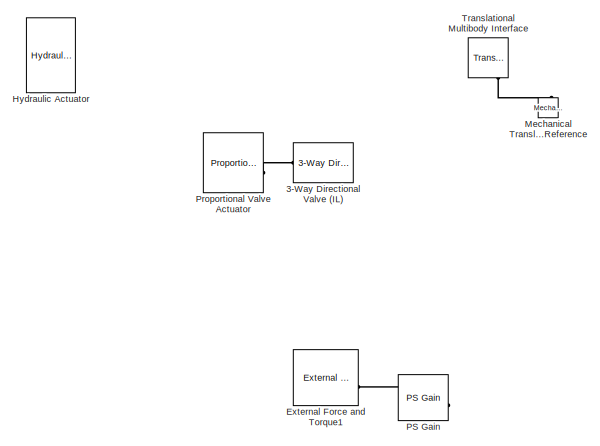
[diagram: root canvas - part 1/2, middle right region]
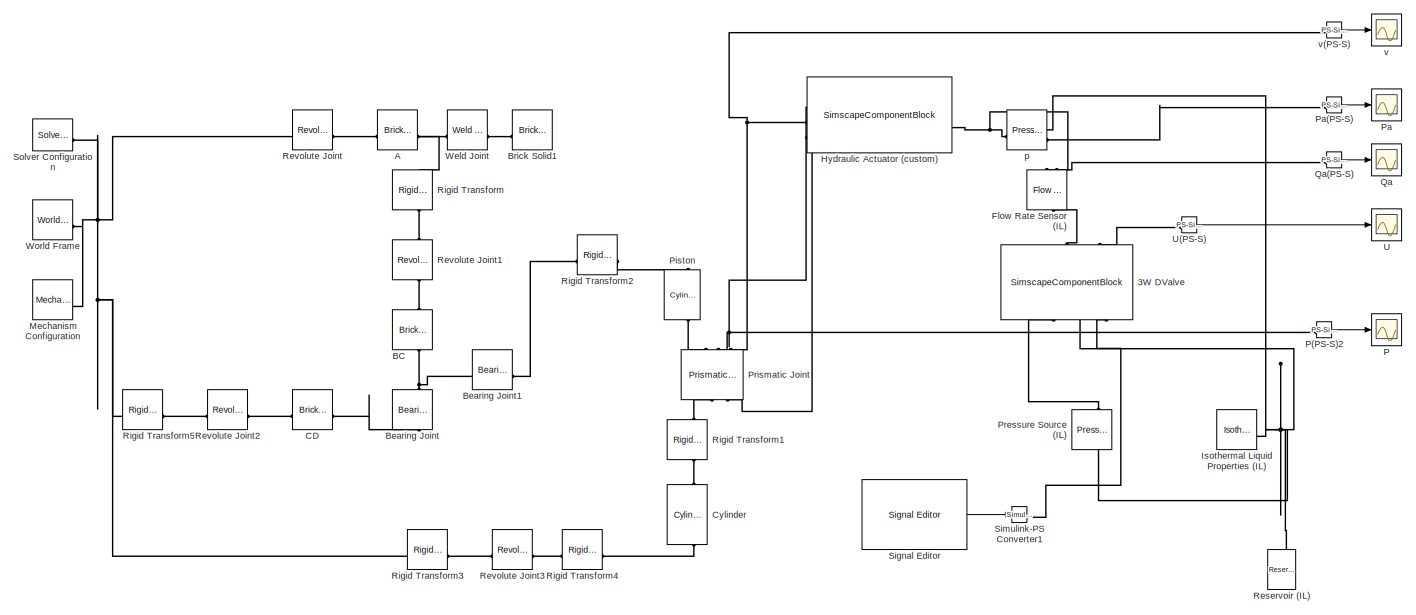
[diagram: root canvas - part 2/2, left side, full height]
MODEL slx_65338b09a762
KIND model
CONFIG AbsTol = 1e-3
CONFIG EnableMultiTasking = on
CONFIG FixedStep = auto
CONFIG MaxStep = auto
CONFIG MinStep = auto
CONFIG RelTol = 1e-3
CONFIG SampleTimeConstraint = Unconstrained
CONFIG SolverName = ode15s
CONFIG StartTime = 0.0
CONFIG StopTime = 1.5
BLOCK [Reference] 3-Way Directional Valve (IL)  REF=SimscapeFluids_lib/Isothermal Liquid/Valves & Orifices/Directional Control
Valves/3-Way Directional
Valve (IL)
  Commented = on
  SourceBlock = SimscapeFluids_lib/Isothermal Liquid/Valves & Orifices/Directional Control\nValves/3-Way Directional\nValve (IL)
  SourceType = 3-Way Directional\nValve (IL)
BLOCK [SimscapeComponentBlock] 3W DValve
  ClassName = custom_DV
  ComponentPath = custom_DV
  ComponentVariantNames = ["custom_DV"]
  ComponentVariants = ["custom_DV"]
  CopyFcn = simscape.engine.sli.internal.componentblockcallback(gcbh,'COPY')
  Cv = 2.67261242e-9
  Cv_conf = compiletime
  Cv_unit = m^3/(Pa^(1/2)*V*s)
  InternalSimscapePortConfiguration = {"Bottom":[],"Left":[{"id":"P","label":"P","type":"foundation.isothermal_liquid.isothermal_liquid"},{"id":"T","label":"T","type":"foundation.isothermal_liquid.isothermal_liquid"},{"id":"Uin","label":"Uin","type":"input"}],"Right":[{"id":"A","label":"A","type":"foundation.isothermal_liquid.isothermal_liquid"},{"id":"U","label":"U","type":"output"}],"Top":[]}
  MaskType = This is .ssc file template for defining a custom simscape component block
  NameLocation = right
  PreCopyFcn = simscape.engine.sli.internal.componentblockcallback(gcbh,'PRECOPY')
  PreDeleteFcn = simscape.engine.sli.internal.componentblockcallback(gcbh,'PREDELETE')
  SchemaVersion = 1
  SourceFile = custom_DV
  mdot_AT = 0
  mdot_AT_nominal_specify = off
  mdot_AT_nominal_unit = kg/s
  mdot_AT_nominal_value = 1
  mdot_AT_priority = None
  mdot_AT_specify = off
  mdot_AT_unit = kg/s
  mdot_PA = 0
  mdot_PA_nominal_specify = off
  mdot_PA_nominal_unit = kg/s
  mdot_PA_nominal_value = 1
  mdot_PA_priority = None
  mdot_PA_specify = off
  mdot_PA_unit = kg/s
  p_AT = 0
  p_AT_nominal_specify = off
  p_AT_nominal_unit = Pa
  p_AT_nominal_value = 1
  p_AT_priority = None
  p_AT_specify = off
  p_AT_unit = Pa
  p_PA = 0
  p_PA_nominal_specify = off
  p_PA_nominal_unit = Pa
  p_PA_nominal_value = 1
  p_PA_priority = None
  p_PA_specify = off
  p_PA_unit = Pa
  rho = 850
  rho_conf = compiletime
  rho_unit = kg/m^3
  tau = 1e-4
  tau_conf = compiletime
  tau_unit = s
BLOCK [Reference] A  REF=sm_lib/Body Elements/Brick Solid
  NameLocation = left
  SourceBlock = sm_lib/Body Elements/Brick Solid
  SourceType = Brick Solid
BLOCK [Reference] BC  REF=sm_lib/Body Elements/Brick Solid
  NameLocation = left
  SourceBlock = sm_lib/Body Elements/Brick Solid
  SourceType = Brick Solid
BLOCK [Reference] Bearing Joint  REF=sm_lib/Joints/Bearing Joint
  NameLocation = right
  SourceBlock = sm_lib/Joints/Bearing Joint
  SourceType = Bearing Joint
BLOCK [Reference] Bearing Joint1  REF=sm_lib/Joints/Bearing Joint
  SourceBlock = sm_lib/Joints/Bearing Joint
  SourceType = Bearing Joint
BLOCK [Reference] Brick Solid1  REF=sm_lib/Body Elements/Brick Solid
  SourceBlock = sm_lib/Body Elements/Brick Solid
  SourceType = Brick Solid
BLOCK [Reference] CD  REF=sm_lib/Body Elements/Brick Solid
  SourceBlock = sm_lib/Body Elements/Brick Solid
  SourceType = Brick Solid
BLOCK [Reference] Cylinder  REF=sm_lib/Body Elements/Cylindrical Solid
  NameLocation = left
  SourceBlock = sm_lib/Body Elements/Cylindrical Solid
  SourceType = Cylindrical Solid
BLOCK [Reference] External Force and Torque1  REF=sm_lib/Forces and
Torques/External Force
and Torque
  Commented = on
  NameLocation = top
  SourceBlock = sm_lib/Forces and\nTorques/External Force\nand Torque
  SourceType = External Force\nand Torque
BLOCK [Reference] Flow Rate Sensor (IL)  REF=fl_lib/Isothermal Liquid/Sensors/Flow Rate Sensor
(IL)
  NameLocation = right
  SourceBlock = fl_lib/Isothermal Liquid/Sensors/Flow Rate Sensor\n(IL)
  SourceType = Flow Rate Sensor\n(IL)
BLOCK [Reference] Hydraulic Actuator  REF=Multibody_Multiphysics_Lib/Hydraulic/Hydraulic Actuator
  Commented = on
  NameLocation = right
  SourceBlock = Multibody_Multiphysics_Lib/Hydraulic/Hydraulic Actuator
  SourceProductName = Simscape Multibody Multiphysics Library
  SourceType = Double-Acting Hydraulic Cylinder, Kinematic Inputs
BLOCK [SimscapeComponentBlock] Hydraulic Actuator (custom)
  A1 = pi * ((0.06/2) ^ 2)
  A1_conf = compiletime
  A1_unit = m^2
  Be = 900e6
  Be_conf = compiletime
  Be_unit = Pa
  ClassName = custom_HA
  ComponentPath = custom_HA
  ComponentVariantNames = ["custom_HA"]
  ComponentVariants = ["custom_HA"]
  CopyFcn = simscape.engine.sli.internal.componentblockcallback(gcbh,'COPY')
  InternalSimscapePortConfiguration = {"Bottom":[],"Left":[{"id":"x","label":"x","type":"input"},{"id":"xdot","label":"xd","type":"input"},{"id":"f","label":"F","type":"output"}],"Right":[{"id":"A","label":"A","type":"foundation.isothermal_liquid.isothermal_liquid"}],"Top":[]}
  MaskType = This is .ssc file template for defining a custom simscape component block
  PreCopyFcn = simscape.engine.sli.internal.componentblockcallback(gcbh,'PRECOPY')
  PreDeleteFcn = simscape.engine.sli.internal.componentblockcallback(gcbh,'PREDELETE')
  SchemaVersion = 1
  SourceFile = custom_HA
  V0 = 3.14e-4
  V0_conf = compiletime
  V0_unit = m^3
  mdotA = 0
  mdotA_nominal_specify = off
  mdotA_nominal_unit = kg/s
  mdotA_nominal_value = 1
  mdotA_priority = None
  mdotA_specify = off
  mdotA_unit = kg/s
  n = 0.9
  n_conf = compiletime
  n_unit = 1
  pA = 10e5
  pA_nominal_specify = off
  pA_nominal_unit = Pa
  pA_nominal_value = 1
  pA_priority = None
  pA_specify = off
  pA_unit = Pa
  rho = 850
  rho_conf = compiletime
  rho_unit = kg/m^3
BLOCK [Reference] Isothermal Liquid Properties (IL)  REF=fl_lib/Isothermal Liquid/Utilities/Isothermal Liquid
Properties (IL)
  SourceBlock = fl_lib/Isothermal Liquid/Utilities/Isothermal Liquid\nProperties (IL)
  SourceType = Isothermal Liquid\nProperties (IL)
BLOCK [Reference] Mechanical Translational Reference  REF=fl_lib/Mechanical/Translational
Elements/Mechanical
Translational
Reference
  Commented = on
  NameLocation = right
  SourceBlock = fl_lib/Mechanical/Translational\nElements/Mechanical\nTranslational\nReference
  SourceType = Mechanical\nTranslational\nReference
BLOCK [Reference] Mechanism Configuration  REF=sm_lib/Utilities/Mechanism
Configuration
  SourceBlock = sm_lib/Utilities/Mechanism\nConfiguration
  SourceType = Mechanism\nConfiguration
BLOCK [Scope] P
  Floating = off
  NumInputPorts = 1
  ScopeSpecificationString = Simulink.scopes.TimeScopeBlockCfg('CurrentConfiguration', extmgr.ConfigurationSet(extmgr.Configuration('Core','General UI',true),extmgr.Configuration('Core','Source UI',true),extmgr.Configuration('Sources','WiredSimulink',true,'DataLoggingVariableName','ScopeData5'),extmgr.Configuration('Visuals','Time Domain',true,'SerializedDisplays',{struct('MinYLimReal','0.01718','MaxYLimReal','0.03804','YLabe...<+1523ch>
BLOCK [Reference] P(PS-S)2  REF=nesl_utility/PS-Simulink
Converter
  SourceBlock = nesl_utility/PS-Simulink\nConverter
  SourceType = PS-Simulink\nConverter
BLOCK [Reference] PS Gain  REF=fl_lib/Physical Signals/Functions/PS Gain
  Commented = on
  NameLocation = top
  SourceBlock = fl_lib/Physical Signals/Functions/PS Gain
  SourceType = PS Gain
BLOCK [Scope] Pa
  Floating = off
  NumInputPorts = 1
  ScopeSpecificationString = Simulink.scopes.TimeScopeBlockCfg('CurrentConfiguration', extmgr.ConfigurationSet(extmgr.Configuration('Core','General UI',true),extmgr.Configuration('Core','Source UI',true),extmgr.Configuration('Sources','WiredSimulink',true,'DataLoggingVariableName','ScopeData1'),extmgr.Configuration('Visuals','Time Domain',true,'SerializedDisplays',{struct('MinYLimReal','-1964033.98967','MaxYLimReal','2057398....<+1632ch>
BLOCK [Reference] Pa(PS-S)  REF=nesl_utility/PS-Simulink
Converter
  SourceBlock = nesl_utility/PS-Simulink\nConverter
  SourceType = PS-Simulink\nConverter
BLOCK [Reference] Piston  REF=sm_lib/Body Elements/Cylindrical Solid
  NameLocation = left
  SourceBlock = sm_lib/Body Elements/Cylindrical Solid
  SourceType = Cylindrical Solid
BLOCK [Reference] Pressure Source (IL)  REF=fl_lib/Isothermal Liquid/Sources/Pressure Source (IL)
  NameLocation = left
  SourceBlock = fl_lib/Isothermal Liquid/Sources/Pressure Source (IL)
  SourceType = Pressure Source (IL)
BLOCK [Reference] Prismatic Joint  REF=sm_lib/Joints/Prismatic
Joint
  NameLocation = right
  SourceBlock = sm_lib/Joints/Prismatic\nJoint
  SourceType = Prismatic\nJoint
BLOCK [Reference] Proportional Valve Actuator  REF=SimscapeFluids_lib/Valve Actuators/Proportional Valve
Actuator
  Commented = on
  SourceBlock = SimscapeFluids_lib/Valve Actuators/Proportional Valve\nActuator
  SourceType = Proportional Valve\nActuator
BLOCK [Scope] Qa
  Floating = off
  NumInputPorts = 1
  ScopeSpecificationString = Simulink.scopes.TimeScopeBlockCfg('CurrentConfiguration', extmgr.ConfigurationSet(extmgr.Configuration('Core','General UI',true),extmgr.Configuration('Core','Source UI',true),extmgr.Configuration('Sources','WiredSimulink',true,'DataLoggingVariableName','ScopeData2'),extmgr.Configuration('Visuals','Time Domain',true,'SerializedDisplays',{struct('MinYLimReal','-0.00000006','MaxYLimReal','0.00000055'...<+1480ch>
BLOCK [Reference] Qa(PS-S)  REF=nesl_utility/PS-Simulink
Converter
  SourceBlock = nesl_utility/PS-Simulink\nConverter
  SourceType = PS-Simulink\nConverter
BLOCK [Reference] Reservoir (IL)  REF=fl_lib/Isothermal Liquid/Elements/Reservoir (IL)
  NameLocation = right
  SourceBlock = fl_lib/Isothermal Liquid/Elements/Reservoir (IL)
  SourceType = Reservoir (IL)
BLOCK [Reference] Revolute Joint  REF=sm_lib/Joints/Revolute Joint
  SourceBlock = sm_lib/Joints/Revolute Joint
  SourceType = Revolute Joint
BLOCK [Reference] Revolute Joint1  REF=sm_lib/Joints/Revolute Joint
  NameLocation = left
  SourceBlock = sm_lib/Joints/Revolute Joint
  SourceType = Revolute Joint
BLOCK [Reference] Revolute Joint2  REF=sm_lib/Joints/Revolute Joint
  SourceBlock = sm_lib/Joints/Revolute Joint
  SourceType = Revolute Joint
BLOCK [Reference] Revolute Joint3  REF=sm_lib/Joints/Revolute Joint
  NameLocation = top
  SourceBlock = sm_lib/Joints/Revolute Joint
  SourceType = Revolute Joint
BLOCK [Reference] Rigid Transform  REF=sm_lib/Frames and
Transforms/Rigid
Transform
  NameLocation = left
  SourceBlock = sm_lib/Frames and\nTransforms/Rigid\nTransform
  SourceType = Rigid\nTransform
BLOCK [Reference] Rigid Transform1  REF=sm_lib/Frames and
Transforms/Rigid
Transform
  NameLocation = right
  SourceBlock = sm_lib/Frames and\nTransforms/Rigid\nTransform
  SourceType = Rigid\nTransform
BLOCK [Reference] Rigid Transform2  REF=sm_lib/Frames and
Transforms/Rigid
Transform
  SourceBlock = sm_lib/Frames and\nTransforms/Rigid\nTransform
  SourceType = Rigid\nTransform
BLOCK [Reference] Rigid Transform3  REF=sm_lib/Frames and
Transforms/Rigid
Transform
  SourceBlock = sm_lib/Frames and\nTransforms/Rigid\nTransform
  SourceType = Rigid\nTransform
BLOCK [Reference] Rigid Transform4  REF=sm_lib/Frames and
Transforms/Rigid
Transform
  SourceBlock = sm_lib/Frames and\nTransforms/Rigid\nTransform
  SourceType = Rigid\nTransform
BLOCK [Reference] Rigid Transform5  REF=sm_lib/Frames and
Transforms/Rigid
Transform
  SourceBlock = sm_lib/Frames and\nTransforms/Rigid\nTransform
  SourceType = Rigid\nTransform
BLOCK [Reference] Signal Editor  REF=SignalEditorBlockLib/Signal Editor
  LibrarySourceBlock = simulink/Sources/Signal Editor
  SourceBlock = SignalEditorBlockLib/Signal Editor
  SourceType = SignalEditor
  UserDataPersistent = on
BLOCK [Reference] Simulink-PS Converter1  REF=nesl_utility/Simulink-PS
Converter
  SourceBlock = nesl_utility/Simulink-PS\nConverter
  SourceType = Simulink-PS\nConverter
BLOCK [Reference] Solver Configuration  REF=nesl_utility/Solver
Configuration
  SourceBlock = nesl_utility/Solver\nConfiguration
  SourceType = Solver\nConfiguration
BLOCK [Reference] Translational Multibody Interface  REF=fl_lib/Mechanical/Multibody Interfaces/Translational
Multibody Interface
  Commented = on
  NameLocation = right
  SourceBlock = fl_lib/Mechanical/Multibody Interfaces/Translational\nMultibody Interface
  SourceType = Translational\nMultibody Interface
BLOCK [Scope] U
  Floating = off
  NumInputPorts = 1
  ScopeSpecificationString = Simulink.scopes.TimeScopeBlockCfg('CurrentConfiguration', extmgr.ConfigurationSet(extmgr.Configuration('Core','General UI',true),extmgr.Configuration('Core','Source UI',true),extmgr.Configuration('Sources','WiredSimulink',true,'DataLoggingVariableName','ScopeData3'),extmgr.Configuration('Visuals','Time Domain',true,'SerializedDisplays',{struct('MinYLimReal','-1.25056','MaxYLimReal','11.25506','YLa...<+1459ch>
BLOCK [Reference] U(PS-S)  REF=nesl_utility/PS-Simulink
Converter
  SourceBlock = nesl_utility/PS-Simulink\nConverter
  SourceType = PS-Simulink\nConverter
BLOCK [Reference] Weld Joint  REF=sm_lib/Joints/Weld Joint
  SourceBlock = sm_lib/Joints/Weld Joint
  SourceType = Weld Joint
BLOCK [Reference] World Frame  REF=sm_lib/Frames and
Transforms/World Frame
  SourceBlock = sm_lib/Frames and\nTransforms/World Frame
  SourceType = World Frame
BLOCK [Reference] p  REF=fl_lib/Isothermal Liquid/Sensors/Pressure Sensor (IL)
  SourceBlock = fl_lib/Isothermal Liquid/Sensors/Pressure Sensor (IL)
  SourceType = Pressure Sensor (IL)
BLOCK [Scope] v
  Floating = off
  NumInputPorts = 1
  ScopeSpecificationString = Simulink.scopes.TimeScopeBlockCfg('CurrentConfiguration', extmgr.ConfigurationSet(extmgr.Configuration('Core','General UI',true),extmgr.Configuration('Core','Source UI',true),extmgr.Configuration('Sources','WiredSimulink',true,'DataLoggingVariableName','ScopeData4'),extmgr.Configuration('Visuals','Time Domain',true,'SerializedDisplays',{struct('MinYLimReal','-0.40449','MaxYLimReal','0.54769','YLab...<+1455ch>
BLOCK [Reference] v(PS-S)  REF=nesl_utility/PS-Simulink
Converter
  SourceBlock = nesl_utility/PS-Simulink\nConverter
  SourceType = PS-Simulink\nConverter
LINE P(PS-S)2:1 -> P:1
LINE Pa(PS-S):1 -> Pa:1
LINE Qa(PS-S):1 -> Qa:1
LINE Signal Editor:1 -> Simulink-PS Converter1:1
LINE U(PS-S):1 -> U:1
LINE v(PS-S):1 -> v:1
PLINE 3-Way Directional Valve (IL):LConn1 -- Proportional Valve Actuator:RConn1
PLINE 3W DValve:LConn1 -- Pressure Source (IL):RConn1
PNET net1: 3W DValve:LConn2 -- Isothermal Liquid Properties (IL):RConn1 -- Pressure Source (IL):LConn1 -- Reservoir (IL):LConn1 -- p:RConn1
PLINE 3W DValve:LConn3 -- Simulink-PS Converter1:RConn1
PLINE 3W DValve:RConn1 -- Flow Rate Sensor (IL):LConn1
PLINE 3W DValve:RConn2 -- U(PS-S):LConn1
PLINE A:LConn1 -- Revolute Joint:RConn1
PNET net2: A:RConn1 -- Rigid Transform:LConn1 -- Weld Joint:LConn1
PLINE BC:LConn1 -- Revolute Joint1:RConn1
PNET net3: BC:RConn1 -- Bearing Joint1:LConn1 -- Bearing Joint:RConn1
PLINE Bearing Joint1:RConn1 -- Rigid Transform2:LConn1
PLINE Bearing Joint:LConn1 -- CD:RConn1
PLINE Brick Solid1:LConn1 -- Weld Joint:RConn1
PLINE CD:LConn1 -- Revolute Joint2:RConn1
PLINE Cylinder:LConn1 -- Rigid Transform1:LConn1
PLINE Cylinder:RConn1 -- Rigid Transform4:RConn1
PLINE External Force and Torque1:LConn1 -- PS Gain:RConn1
PNET net4: Flow Rate Sensor (IL):RConn1 -- Hydraulic Actuator (custom):RConn1 -- p:LConn1
PLINE Flow Rate Sensor (IL):RConn2 -- Qa(PS-S):LConn1
PNET net5: Hydraulic Actuator (custom):LConn1 -- P(PS-S)2:LConn1 -- Prismatic Joint:RConn2
PNET net6: Hydraulic Actuator (custom):LConn2 -- Prismatic Joint:RConn3 -- v(PS-S):LConn1
PLINE Hydraulic Actuator (custom):LConn3 -- Prismatic Joint:LConn2
PLINE Mechanical Translational Reference:LConn1 -- Translational Multibody Interface:LConn2
PNET net7: Mechanism Configuration:RConn1 -- Revolute Joint:LConn1 -- Rigid Transform3:LConn1 -- Rigid Transform5:LConn1 -- Solver Configuration:RConn1 -- World Frame:RConn1
PLINE Pa(PS-S):LConn1 -- p:RConn2
PLINE Piston:LConn1 -- Rigid Transform2:RConn1
PLINE Piston:RConn1 -- Prismatic Joint:RConn1
PLINE Prismatic Joint:LConn1 -- Rigid Transform1:RConn1
PLINE Revolute Joint1:LConn1 -- Rigid Transform:RConn1
PLINE Revolute Joint2:LConn1 -- Rigid Transform5:RConn1
PLINE Revolute Joint3:LConn1 -- Rigid Transform4:LConn1
PLINE Revolute Joint3:RConn1 -- Rigid Transform3:RConn1
note: PNET lines group multi-terminal physical nets as a canonical sorted terminal list (undirected conserving connections); 2-terminal nets keep the pairwise PLINE form
